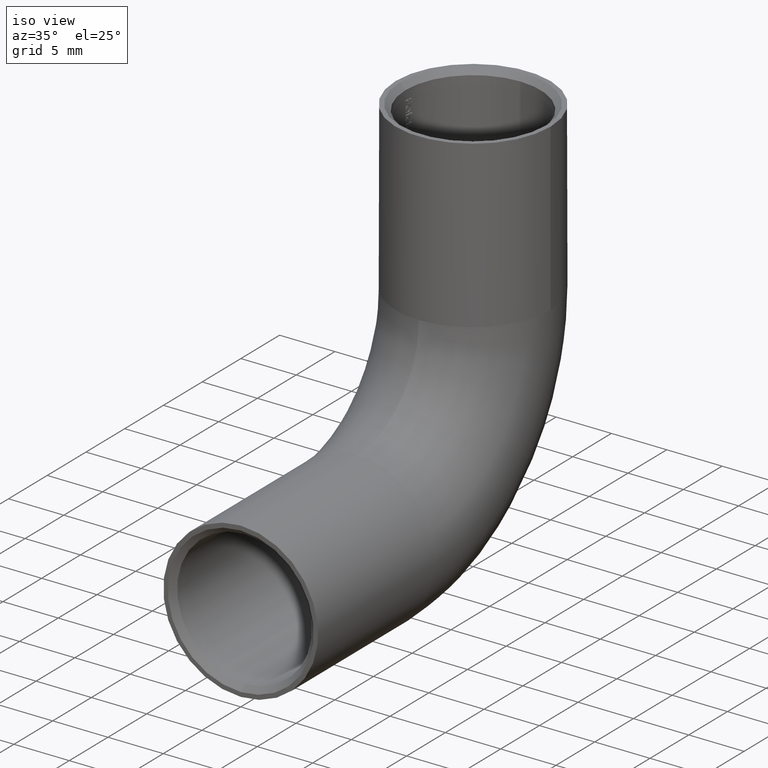
[diagram: clean part render]
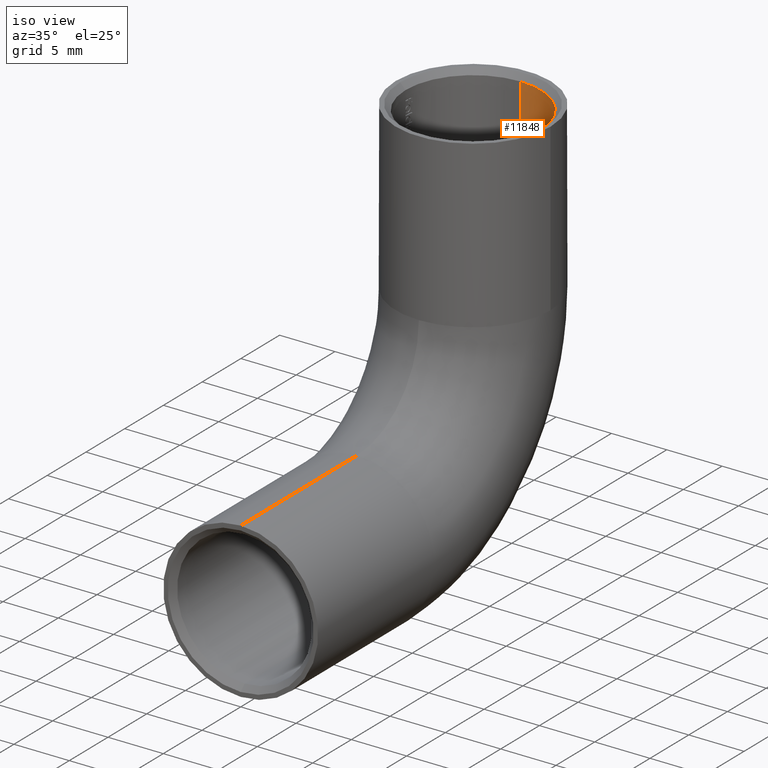
[diagram: same view with one face highlighted and labeled with its STEP entity id]
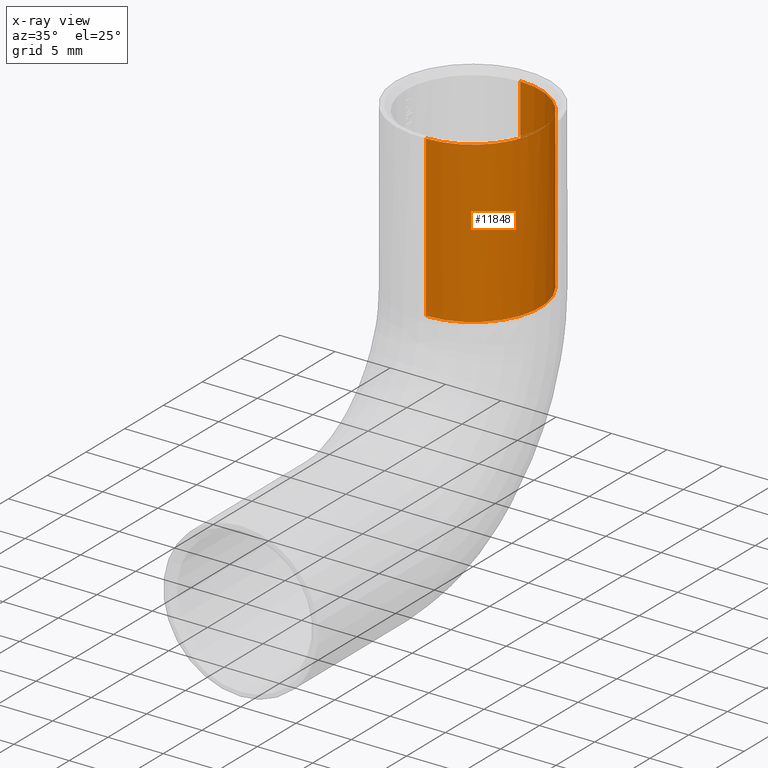
[diagram: x-ray of the same camera — body ghosted, the highlighted face saturated]
A machine part, iso view. The second image highlights one B-rep face of the part: STEP entity #11848.
The next image is the same camera in x-ray: the body ghosted, the highlighted face saturated — about 0% of this face is hidden behind the body in this view.
In plain terms, the highlighted cylindrical surface (partial cylindrical patch) has radius 6.1 mm, axis along (-0, -0, 1).
Its self-contained STEP definition (entity closure, byte-faithful):
#152 = EDGE_CURVE ( 'NONE', #8306, #6889, #13121, .T. ) ;
#433 = CARTESIAN_POINT ( 'NONE',  ( 7.470345474798861195E-16, 36.10000000000000142, 15.00000000000000178 ) ) ;
#720 = DIRECTION ( 'NONE',  ( -0.000000000000000000, 2.220446049250313081E-16, -1.000000000000000000 ) ) ;
#765 = CARTESIAN_POINT ( 'NONE',  ( 0.000000000000000000, 30.00000000000000000, 15.00000000000000000 ) ) ;
#1813 = DIRECTION ( 'NONE',  ( -0.000000000000000000, -0.000000000000000000, 1.000000000000000000 ) ) ;
#1849 = LINE ( 'NONE', #9493, #8027 ) ;
#1935 = VERTEX_POINT ( 'NONE', #4279 ) ;
#2008 = EDGE_CURVE ( 'NONE', #3592, #1935, #1849, .T. ) ;
#2042 = VECTOR ( 'NONE', #10799, 1000.000000000000000 ) ;
#2774 = EDGE_LOOP ( 'NONE', ( #10656, #2998, #8026, #8369, #11331 ) ) ;
#2807 = CARTESIAN_POINT ( 'NONE',  ( 0.000000000000000000, 29.99999999999999645, 29.49999999999999645 ) ) ;
#2929 = CARTESIAN_POINT ( 'NONE',  ( 0.000000000000000000, 23.89999999999999858, 14.99999999999999822 ) ) ;
#2996 = CIRCLE ( 'NONE', #3309, 6.099999999999999645 ) ;
#2998 = ORIENTED_EDGE ( 'NONE', *, *, #11215, .T. ) ;
#3309 = AXIS2_PLACEMENT_3D ( 'NONE', #8811, #1813, #4686 ) ;
#3592 = VERTEX_POINT ( 'NONE', #2929 ) ;
#3734 = CARTESIAN_POINT ( 'NONE',  ( 7.470345474798856265E-16, 36.09999999999999432, 29.49999999999999645 ) ) ;
#4279 = CARTESIAN_POINT ( 'NONE',  ( 0.000000000000000000, 23.89999999999999858, 29.49999999999999645 ) ) ;
#4662 = FACE_OUTER_BOUND ( 'NONE', #2774, .T. ) ;
#4686 = DIRECTION ( 'NONE',  ( 1.000000000000000000, 0.000000000000000000, 0.000000000000000000 ) ) ;
#5160 = CARTESIAN_POINT ( 'NONE',  ( 0.000000000000000000, 30.00000000000000000, 15.00000000000000000 ) ) ;
#5883 = CARTESIAN_POINT ( 'NONE',  ( 6.100000000000000533, 29.99999999999999645, 29.49999999999999645 ) ) ;
#6376 = AXIS2_PLACEMENT_3D ( 'NONE', #5160, #7107, #11036 ) ;
#6889 = VERTEX_POINT ( 'NONE', #3734 ) ;
#7102 = EDGE_CURVE ( 'NONE', #1935, #10467, #11407, .T. ) ;
#7107 = DIRECTION ( 'NONE',  ( -0.000000000000000000, -2.220446049250313081E-16, 1.000000000000000000 ) ) ;
#7702 = CIRCLE ( 'NONE', #7979, 6.100000000000001421 ) ;
#7979 = AXIS2_PLACEMENT_3D ( 'NONE', #765, #720, #11896 ) ;
#8026 = ORIENTED_EDGE ( 'NONE', *, *, #2008, .T. ) ;
#8027 = VECTOR ( 'NONE', #12544, 1000.000000000000000 ) ;
#8306 = VERTEX_POINT ( 'NONE', #433 ) ;
#8368 = EDGE_CURVE ( 'NONE', #10467, #6889, #2996, .T. ) ;
#8369 = ORIENTED_EDGE ( 'NONE', *, *, #7102, .T. ) ;
#8811 = CARTESIAN_POINT ( 'NONE',  ( 0.000000000000000000, 29.99999999999999645, 29.49999999999999645 ) ) ;
#9493 = CARTESIAN_POINT ( 'NONE',  ( 0.000000000000000000, 23.89999999999999858, 14.99999999999999822 ) ) ;
#9568 = AXIS2_PLACEMENT_3D ( 'NONE', #2807, #9887, #10898 ) ;
#9887 = DIRECTION ( 'NONE',  ( -0.000000000000000000, -0.000000000000000000, 1.000000000000000000 ) ) ;
#10042 = CYLINDRICAL_SURFACE ( 'NONE', #6376, 6.100000000000001421 ) ;
#10467 = VERTEX_POINT ( 'NONE', #5883 ) ;
#10656 = ORIENTED_EDGE ( 'NONE', *, *, #152, .F. ) ;
#10799 = DIRECTION ( 'NONE',  ( -0.000000000000000000, -2.220446049250313081E-16, 1.000000000000000000 ) ) ;
#10898 = DIRECTION ( 'NONE',  ( 1.000000000000000000, 0.000000000000000000, 0.000000000000000000 ) ) ;
#11036 = DIRECTION ( 'NONE',  ( 0.000000000000000000, -1.000000000000000000, -2.843808977011158322E-16 ) ) ;
#11215 = EDGE_CURVE ( 'NONE', #8306, #3592, #7702, .T. ) ;
#11331 = ORIENTED_EDGE ( 'NONE', *, *, #8368, .T. ) ;
#11407 = CIRCLE ( 'NONE', #9568, 6.099999999999999645 ) ;
#11848 = ADVANCED_FACE ( 'NONE', ( #4662 ), #10042, .F. ) ;
#11896 = DIRECTION ( 'NONE',  ( 0.000000000000000000, 1.000000000000000000, 2.843808977011158322E-16 ) ) ;
#12544 = DIRECTION ( 'NONE',  ( -0.000000000000000000, -2.220446049250313081E-16, 1.000000000000000000 ) ) ;
#12708 = CARTESIAN_POINT ( 'NONE',  ( 7.470345474798854293E-16, 36.10000000000000142, 15.00000000000000178 ) ) ;
#13121 = LINE ( 'NONE', #12708, #2042 ) ;